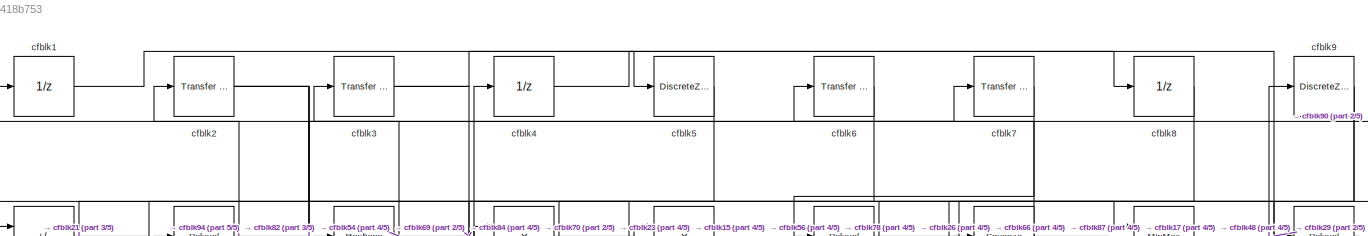
[diagram: root canvas - part 1/5, full width, top band]
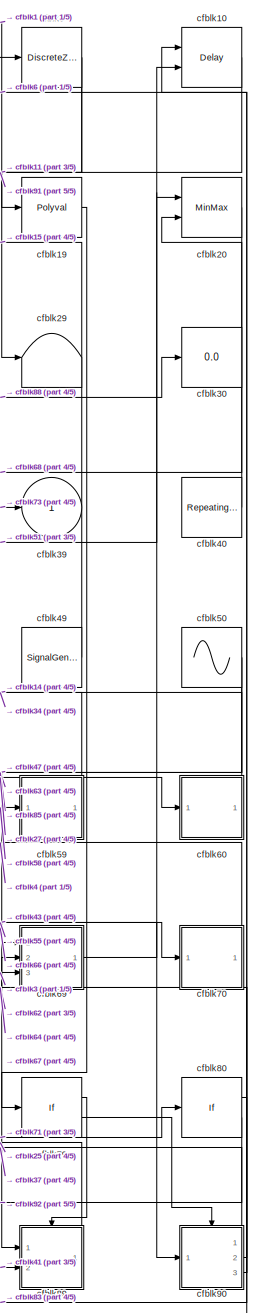
[diagram: root canvas - part 2/5, right side, full height]
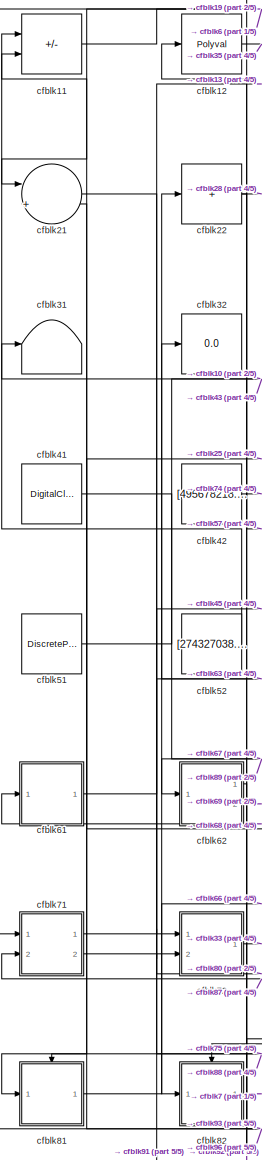
[diagram: root canvas - part 3/5, left side, full height]
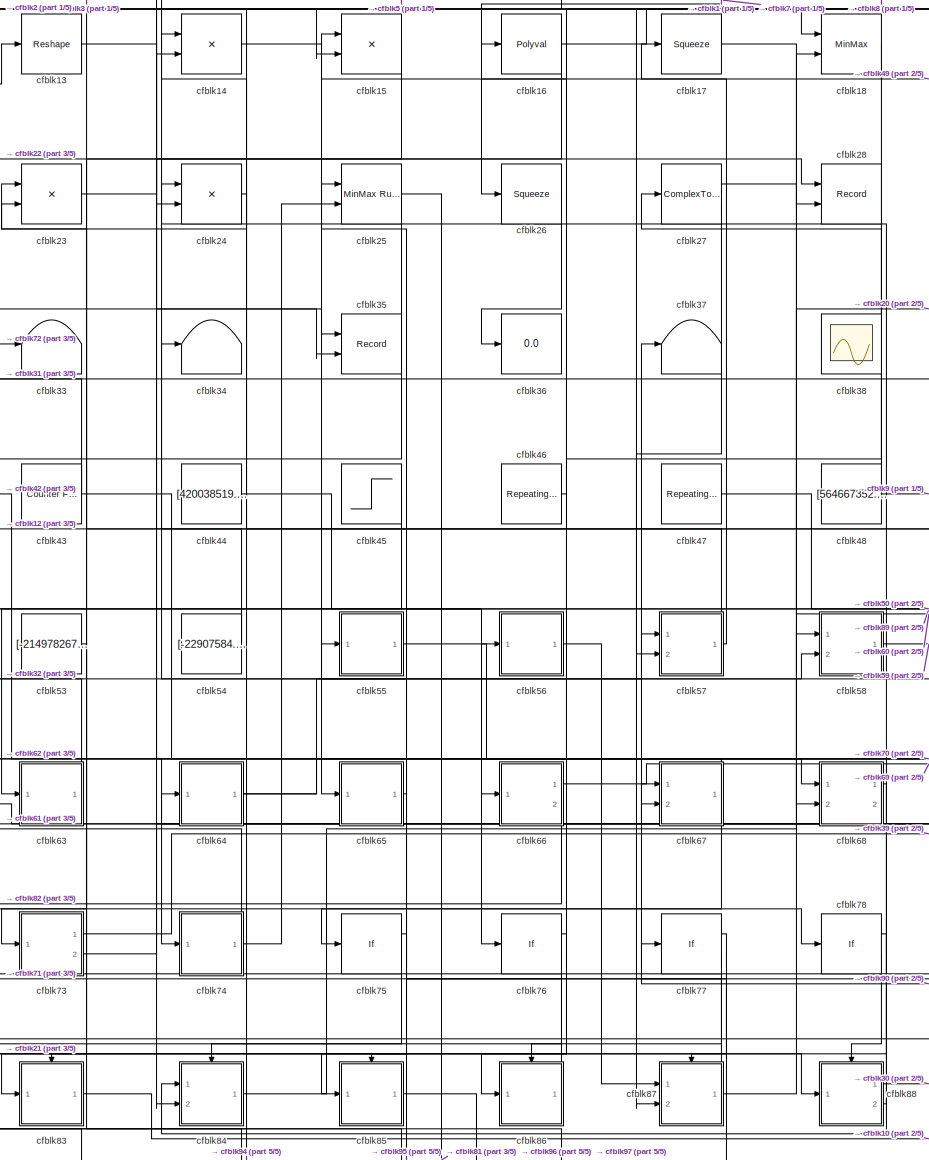
[diagram: root canvas - part 4/5, center side, full height]
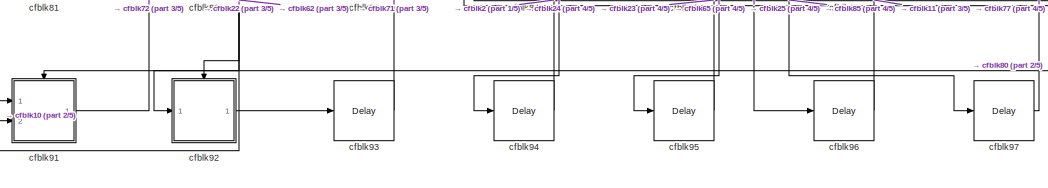
[diagram: root canvas - part 5/5, bottom center region]
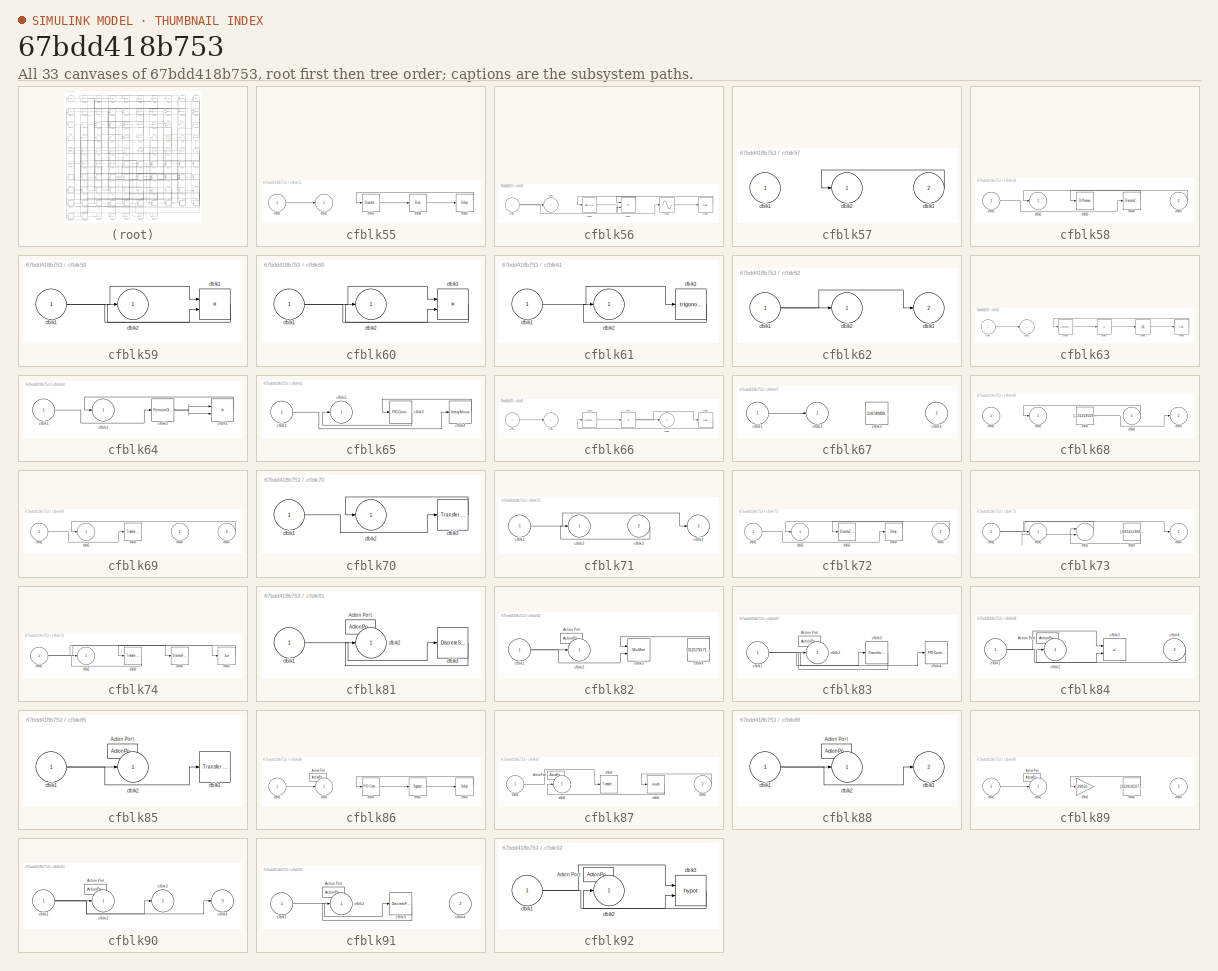
[diagram: thumbnail index - all 33 canvases of the model, root first then tree order]
MODEL slx_67bdd418b753
KIND model
CONFIG AbsTol = auto
CONFIG EnableMultiTasking = off
CONFIG FixedStep = auto
CONFIG MaxStep = auto
CONFIG MinStep = auto
CONFIG RelTol = 1e-3
CONFIG SampleTimeConstraint = Unconstrained
CONFIG SolverName = VariableStepAuto
CONFIG StartTime = 0.0
CONFIG StopTime = 10.0
BLOCK [UnitDelay] cfblk1
  HasFrameUpgradeWarning = on
BLOCK [Delay] cfblk10
  InputPortMap = u0,e6
  Ports = [2, 1]
  SampleTime = 1
  ShowEnablePort = on
BLOCK [Sum] cfblk11
  IconShape = rectangular
  Inputs = -+
  Ports = [2, 1]
BLOCK [Polyval] cfblk12
  Coefs = [ +2.081618890e-019, -1.441693666e-014, +4.719686976e-010, -8.536869453e-006, +1.621573104e-001, -8.087801117e+001 ]
BLOCK [Reshape] cfblk13
  Ports = [1, 1]
BLOCK [Product] cfblk14
  Ports = [2, 1]
BLOCK [Product] cfblk15
  Ports = [2, 1]
BLOCK [Polyval] cfblk16
  Coefs = [ +2.081618890e-019, -1.441693666e-014, +4.719686976e-010, -8.536869453e-006, +1.621573104e-001, -8.087801117e+001 ]
BLOCK [Squeeze] cfblk17
BLOCK [MinMax] cfblk18
  Function = max
  Inputs = 2
  Ports = [2, 1]
BLOCK [Polyval] cfblk19
  Coefs = [ +2.081618890e-019, -1.441693666e-014, +4.719686976e-010, -8.536869453e-006, +1.621573104e-001, -8.087801117e+001 ]
BLOCK [Reference] cfblk2  REF=simulink/Discrete/Transfer Fcn
Real Zero
  Ports = [1, 1]
  SourceBlock = simulink/Discrete/Transfer Fcn\nReal Zero
  SourceProductBaseCode = SL
  SourceType = Transfer Fcn Real Zero
BLOCK [MinMax] cfblk20
  Function = max
  Inputs = 2
  Ports = [2, 1]
BLOCK [Sum] cfblk21
  Inputs = |++
  Ports = [2, 1]
BLOCK [Sum] cfblk22
  IconShape = rectangular
  Inputs = +
  Ports = [1, 1]
BLOCK [Product] cfblk23
  Inputs = **
  Ports = [2, 1]
BLOCK [Product] cfblk24
  Ports = [2, 1]
BLOCK [Reference] cfblk25  REF=simulink/Math
Operations/MinMax
Running
Resettable
  Ports = [2, 1]
  SourceBlock = simulink/Math\nOperations/MinMax\nRunning\nResettable
  SourceProductBaseCode = SL
  SourceType = MinMax Running Resettable
BLOCK [Squeeze] cfblk26
BLOCK [ComplexToMagnitudeAngle] cfblk27
  Ports = [1, 2]
BLOCK [Record] cfblk28
  CompatibilityTag = XY
  FileSettingsInternal = {"entries":[{"content":{"excelSettings":{"content":{},"type":"Streamout.ExcelSettings"}},"type":"Streamout.FileSettingStorage","uuid":"2c212456-ffd4-42f7-90f6-1e0b846be94d"}],"packageUris":["http://schema.mathworks.com/mf0/streamout_blocks/R2020a"],"version":"1.0"}
  Layout = [1 1]
  Ports = [2]
  SignalsInternal = {"entries":[{"content":{"signals":[{"content":{"blockPath":["sampleModel153/cfblk28"],"channel":[],"dimensions":[1],"domain":"sampleModel153/cfblk28","lineColor":"#a2142f","plots":[1],"port":1,"sid":[""],"signalID":5763,"signalName":"cfblk22"},"type":"RecordBlkView.Signal","uuid":"cd0d1053-2d62-45ce-b0cb-306719bd41ca"},{"content":{"blockPath":["sampleModel153/cfblk28"],"channel":[],"dimensions":[1...<+383ch>
  VisualizationBindings = {"xyplotplugin":{"info":[{"series":[{"bindingParametersList":[{"parameter":"X-Axis","signalID":5763,"signalName":"cfblk22"},{"parameter":"Y-Axis","signalID":5767,"signalName":"cfblk17"}],"seriesID":24473}],"subplotID":1}]}}
BLOCK [Terminator] cfblk29
BLOCK [Reference] cfblk3  REF=simulink/Discrete/Transfer Fcn
Real Zero
  Ports = [1, 1]
  SourceBlock = simulink/Discrete/Transfer Fcn\nReal Zero
  SourceProductBaseCode = SL
  SourceType = Transfer Fcn Real Zero
BLOCK [Display] cfblk30
  Decimation = 1
  Ports = [1]
BLOCK [Terminator] cfblk31
BLOCK [Display] cfblk32
  Decimation = 1
  Ports = [1]
BLOCK [Terminator] cfblk33
BLOCK [Terminator] cfblk34
BLOCK [Record] cfblk35
  CompatibilityTag = XY
  FileSettingsInternal = {"entries":[{"content":{"excelSettings":{"content":{},"type":"Streamout.ExcelSettings"}},"type":"Streamout.FileSettingStorage","uuid":"1263f3c2-cf19-49a5-a86e-01916edfd877"}],"packageUris":["http://schema.mathworks.com/mf0/streamout_blocks/R2020a"],"version":"1.0"}
  Layout = [1 1]
  Ports = [2]
  SignalsInternal = {"entries":[{"content":{"signals":[{"content":{"blockPath":["sampleModel153/cfblk35"],"channel":[],"dimensions":[1],"domain":"sampleModel153/cfblk35","lineColor":"#a2142f","plots":[1],"port":1,"sid":[""],"signalID":5771,"signalName":"cfblk13"},"type":"RecordBlkView.Signal","uuid":"12ff4bb5-13ec-4cb2-af01-71f94b166f3a"},{"content":{"blockPath":["sampleModel153/cfblk35"],"channel":[],"dimensions":[1...<+383ch>
  VisualizationBindings = {"xyplotplugin":{"info":[{"series":[{"bindingParametersList":[{"parameter":"X-Axis","signalID":5771,"signalName":"cfblk13"},{"parameter":"Y-Axis","signalID":5775,"signalName":"cfblk12"}],"seriesID":38027}],"subplotID":1}]}}
BLOCK [Display] cfblk36
  Decimation = 1
  Ports = [1]
BLOCK [Terminator] cfblk37
BLOCK [Scope] cfblk38
  Floating = on
  NumInputPorts = 1
  Ports = []
BLOCK [Outport] cfblk39
BLOCK [UnitDelay] cfblk4
  HasFrameUpgradeWarning = on
BLOCK [Reference] cfblk40  REF=simulink/Sources/Repeating
Sequence
  Ports = [0, 1]
  SourceBlock = simulink/Sources/Repeating\nSequence
  SourceProductBaseCode = SL
  SourceType = Repeating table
BLOCK [DigitalClock] cfblk41
BLOCK [Constant] cfblk42
  SampleTime = 1
  Value = [495678218.054794]
BLOCK [Reference] cfblk43  REF=simulink/Sources/Counter
Free-Running
  Ports = [0, 1]
  SourceBlock = simulink/Sources/Counter\nFree-Running
  SourceProductBaseCode = SL
  SourceType = Counter Free-Running
BLOCK [Constant] cfblk44
  SampleTime = 1
  Value = [420038519.673306]
BLOCK [Step] cfblk45
  After = [-884570738.037617]
  Before = [549406599.137464]
  SampleTime = 0
  Time = [9.000000]
BLOCK [Reference] cfblk46  REF=simulink/Sources/Repeating
Sequence
  Ports = [0, 1]
  SourceBlock = simulink/Sources/Repeating\nSequence
  SourceProductBaseCode = SL
  SourceType = Repeating table
BLOCK [Reference] cfblk47  REF=simulink/Sources/Repeating
Sequence
  Ports = [0, 1]
  SourceBlock = simulink/Sources/Repeating\nSequence
  SourceProductBaseCode = SL
  SourceType = Repeating table
BLOCK [Constant] cfblk48
  SampleTime = 1
  Value = [564667352.227001]
BLOCK [SignalGenerator] cfblk49
  Amplitude = [-35189070.277397]
  Ports = [0, 1]
  WaveForm = square
BLOCK [DiscreteZeroPole] cfblk5
  Gain = 1
  Poles = [0 0.5]
BLOCK [Sin] cfblk50
  Amplitude = [679153258.026251]
  Bias = [71946484.496305]
  Ports = [0, 1]
  SampleTime = 0
BLOCK [DiscretePulseGenerator] cfblk51
  Amplitude = [-905572706.861220]
  Period = [25399311.499519]
  PhaseDelay = [2.000000]
  Ports = [0, 1]
  PulseType = Time based
  PulseWidth = 5
BLOCK [Constant] cfblk52
  SampleTime = 1
  Value = [274327038.621577]
BLOCK [Constant] cfblk53
  SampleTime = 1
  Value = [-214978267.878094]
BLOCK [Constant] cfblk54
  SampleTime = 1
  Value = [-22907584.015559]
BLOCK [SubSystem] cfblk55
  Ports = [1, 1]
  RequestExecContextInheritance = off
BLOCK [Inport] cfblk55/cfblk1
BLOCK [Outport] cfblk55/cfblk2
BLOCK [DiscreteIntegrator] cfblk55/cfblk3
  ICPrevOutput = DiscIntNeverNeededParam
  ICPrevScaledInput = DiscIntNeverNeededParam
  InitialConditionSetting = Auto
  Ports = [1, 1]
BLOCK [Bias] cfblk55/cfblk4
  Bias = [940752023.609601]
  SaturateOnIntegerOverflow = off
BLOCK [Delay] cfblk55/cfblk5
  InputPortMap = u0
  Ports = [1, 1]
  SampleTime = 1
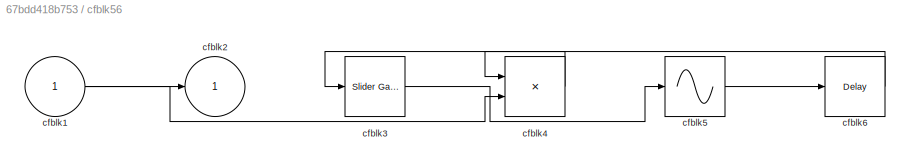
BLOCK [SubSystem] cfblk56
  Ports = [1, 1]
  RequestExecContextInheritance = off
BLOCK [Inport] cfblk56/cfblk1
BLOCK [Outport] cfblk56/cfblk2
BLOCK [Reference] cfblk56/cfblk3  REF=simulink/Math
Operations/Slider
Gain
  Ports = [1, 1]
  SourceBlock = simulink/Math\nOperations/Slider\nGain
  SourceProductBaseCode = SL
  SourceType = Slider Gain
BLOCK [Product] cfblk56/cfblk4
  Inputs = **
  Ports = [2, 1]
BLOCK [Sin] cfblk56/cfblk5
  Ports = [1, 1]
  SampleTime = 0
  TimeSource = Use external signal
BLOCK [Delay] cfblk56/cfblk6
  InputPortMap = u0
  Ports = [1, 1]
  SampleTime = 1
BLOCK [SubSystem] cfblk57
  Ports = [2, 1]
  RequestExecContextInheritance = off
BLOCK [Inport] cfblk57/cfblk1
BLOCK [Outport] cfblk57/cfblk2
BLOCK [Inport] cfblk57/cfblk3
  Port = 2
BLOCK [SubSystem] cfblk58
  Ports = [2, 1]
  RequestExecContextInheritance = off
BLOCK [Inport] cfblk58/cfblk1
BLOCK [Outport] cfblk58/cfblk2
BLOCK [Reference] cfblk58/cfblk3  REF=simulink/Discrete/Difference
  Ports = [1, 1]
  SourceBlock = simulink/Discrete/Difference
  SourceProductBaseCode = SL
  SourceType = Difference
BLOCK [DiscreteZeroPole] cfblk58/cfblk4
  Gain = 1
  Poles = [0 0.5]
BLOCK [Inport] cfblk58/cfblk5
  Port = 2
BLOCK [SubSystem] cfblk59
  Ports = [1, 1]
  RequestExecContextInheritance = off
BLOCK [Inport] cfblk59/cfblk1
BLOCK [Outport] cfblk59/cfblk2
BLOCK [Product] cfblk59/cfblk3
  Inputs = **
  Ports = [2, 1]
BLOCK [Reference] cfblk6  REF=simulink/Discrete/Transfer Fcn
Real Zero
  Ports = [1, 1]
  SourceBlock = simulink/Discrete/Transfer Fcn\nReal Zero
  SourceProductBaseCode = SL
  SourceType = Transfer Fcn Real Zero
BLOCK [SubSystem] cfblk60
  Ports = [1, 1]
  RequestExecContextInheritance = off
BLOCK [Inport] cfblk60/cfblk1
BLOCK [Outport] cfblk60/cfblk2
BLOCK [Product] cfblk60/cfblk3
  Ports = [2, 1]
BLOCK [SubSystem] cfblk61
  Ports = [1, 1]
  RequestExecContextInheritance = off
BLOCK [Inport] cfblk61/cfblk1
BLOCK [Outport] cfblk61/cfblk2
BLOCK [Trigonometry] cfblk61/cfblk3
  Ports = [1, 1]
BLOCK [SubSystem] cfblk62
  Ports = [1, 2]
  RequestExecContextInheritance = off
BLOCK [Inport] cfblk62/cfblk1
BLOCK [Outport] cfblk62/cfblk2
BLOCK [Outport] cfblk62/cfblk3
  Port = 2
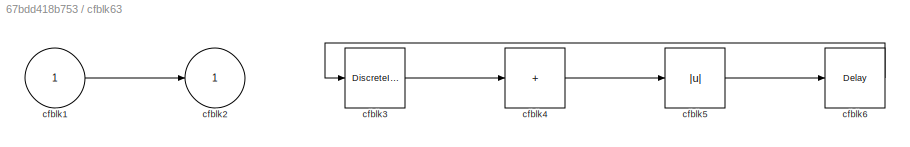
BLOCK [SubSystem] cfblk63
  Ports = [1, 1]
  RequestExecContextInheritance = off
BLOCK [Inport] cfblk63/cfblk1
BLOCK [Outport] cfblk63/cfblk2
BLOCK [DiscreteIntegrator] cfblk63/cfblk3
  ICPrevOutput = DiscIntNeverNeededParam
  ICPrevScaledInput = DiscIntNeverNeededParam
  InitialConditionSetting = Auto
  Ports = [1, 1]
BLOCK [Sum] cfblk63/cfblk4
  IconShape = rectangular
  Inputs = +
  Ports = [1, 1]
BLOCK [Abs] cfblk63/cfblk5
  SaturateOnIntegerOverflow = off
BLOCK [Delay] cfblk63/cfblk6
  InputPortMap = u0
  Ports = [1, 1]
  SampleTime = 1
BLOCK [SubSystem] cfblk64
  Ports = [1, 1]
  RequestExecContextInheritance = off
BLOCK [Inport] cfblk64/cfblk1
BLOCK [Outport] cfblk64/cfblk2
BLOCK [PermuteDimensions] cfblk64/cfblk3
BLOCK [Product] cfblk64/cfblk4
  Ports = [2, 1]
BLOCK [SubSystem] cfblk65
  Ports = [1, 1]
  RequestExecContextInheritance = off
BLOCK [Inport] cfblk65/cfblk1
BLOCK [Outport] cfblk65/cfblk2
BLOCK [Reference] cfblk65/cfblk3  REF=slpidlib/PID Controller
  Ports = [1, 1]
  SourceBlock = slpidlib/PID Controller
  SourceProductBaseCode = SL
  SourceType = PID 1dof
BLOCK [UnaryMinus] cfblk65/cfblk4
BLOCK [SubSystem] cfblk66
  Ports = [1, 2]
  RequestExecContextInheritance = off
BLOCK [Inport] cfblk66/cfblk1
BLOCK [Outport] cfblk66/cfblk2
BLOCK [Reference] cfblk66/cfblk3  REF=simulink/Discrete/Transfer Fcn
Real Zero
  Ports = [1, 1]
  SourceBlock = simulink/Discrete/Transfer Fcn\nReal Zero
  SourceProductBaseCode = SL
  SourceType = Transfer Fcn Real Zero
BLOCK [Product] cfblk66/cfblk4
  Inputs = *
  Ports = [1, 1]
BLOCK [Outport] cfblk66/cfblk5
  Port = 2
BLOCK [Delay] cfblk66/cfblk6
  InputPortMap = u0
  Ports = [1, 1]
  SampleTime = 1
BLOCK [SubSystem] cfblk67
  Ports = [2, 1]
  RequestExecContextInheritance = off
BLOCK [Inport] cfblk67/cfblk1
BLOCK [Outport] cfblk67/cfblk2
BLOCK [Constant] cfblk67/cfblk3
  SampleTime = 1
  Value = [-518749499.142794]
BLOCK [Inport] cfblk67/cfblk4
  Port = 2
BLOCK [SubSystem] cfblk68
  Ports = [2, 2]
  RequestExecContextInheritance = off
BLOCK [Inport] cfblk68/cfblk1
BLOCK [Outport] cfblk68/cfblk2
BLOCK [Constant] cfblk68/cfblk3
  SampleTime = 1
  Value = [-131418509.216649]
BLOCK [Inport] cfblk68/cfblk4
  Port = 2
BLOCK [Outport] cfblk68/cfblk5
  Port = 2
BLOCK [SubSystem] cfblk69
  Ports = [3, 1]
  RequestExecContextInheritance = off
BLOCK [Inport] cfblk69/cfblk1
BLOCK [Outport] cfblk69/cfblk2
BLOCK [Reference] cfblk69/cfblk3  REF=simulink/Discrete/Transfer Fcn
First Order
  Ports = [1, 1]
  SourceBlock = simulink/Discrete/Transfer Fcn\nFirst Order
  SourceProductBaseCode = SL
  SourceType = First Order Transfer Fcn
BLOCK [Inport] cfblk69/cfblk4
  Port = 2
BLOCK [Inport] cfblk69/cfblk5
  Port = 3
BLOCK [Reference] cfblk7  REF=simulink/Discrete/Transfer Fcn
Lead or Lag
  Ports = [1, 1]
  SourceBlock = simulink/Discrete/Transfer Fcn\nLead or Lag
  SourceProductBaseCode = SL
  SourceType = Lead or Lag Compensator
BLOCK [SubSystem] cfblk70
  Ports = [1, 1]
  RequestExecContextInheritance = off
BLOCK [Inport] cfblk70/cfblk1
BLOCK [Outport] cfblk70/cfblk2
BLOCK [Reference] cfblk70/cfblk3  REF=simulink/Discrete/Transfer Fcn
First Order
  Ports = [1, 1]
  SourceBlock = simulink/Discrete/Transfer Fcn\nFirst Order
  SourceProductBaseCode = SL
  SourceType = First Order Transfer Fcn
BLOCK [SubSystem] cfblk71
  Ports = [2, 2]
  RequestExecContextInheritance = off
BLOCK [Inport] cfblk71/cfblk1
BLOCK [Outport] cfblk71/cfblk2
BLOCK [Inport] cfblk71/cfblk3
  Port = 2
BLOCK [Outport] cfblk71/cfblk4
  Port = 2
BLOCK [SubSystem] cfblk72
  Ports = [2, 1]
  RequestExecContextInheritance = off
BLOCK [Inport] cfblk72/cfblk1
BLOCK [Outport] cfblk72/cfblk2
BLOCK [DiscreteZeroPole] cfblk72/cfblk3
  Gain = 1
  Poles = [0 0.5]
BLOCK [Delay] cfblk72/cfblk4
  InputPortMap = u0
  Ports = [1, 1]
  SampleTime = 1
BLOCK [Inport] cfblk72/cfblk5
  Port = 2
BLOCK [SubSystem] cfblk73
  Ports = [1, 2]
  RequestExecContextInheritance = off
BLOCK [Inport] cfblk73/cfblk1
BLOCK [Outport] cfblk73/cfblk2
BLOCK [Sum] cfblk73/cfblk3
  Inputs = |++
  Ports = [2, 1]
BLOCK [Constant] cfblk73/cfblk4
  SampleTime = 1
  Value = [-692411394.663494]
BLOCK [Outport] cfblk73/cfblk5
  Port = 2
BLOCK [SubSystem] cfblk74
  Ports = [1, 1]
  RequestExecContextInheritance = off
BLOCK [Inport] cfblk74/cfblk1
BLOCK [Outport] cfblk74/cfblk2
BLOCK [Reference] cfblk74/cfblk3  REF=simulink/Discrete/Transfer Fcn
Real Zero
  Ports = [1, 1]
  SourceBlock = simulink/Discrete/Transfer Fcn\nReal Zero
  SourceProductBaseCode = SL
  SourceType = Transfer Fcn Real Zero
BLOCK [DiscreteFilter] cfblk74/cfblk4
  InputPortMap = u0
  Ports = [1, 1]
  SampleTime = 1
BLOCK [UnitDelay] cfblk74/cfblk5
  HasFrameUpgradeWarning = on
BLOCK [If] cfblk75
  IfExpression = u1 >= 0
  Ports = [1, 2]
  SampleTime = 1
BLOCK [If] cfblk76
  IfExpression = u1 >= 0
  Ports = [1, 2]
  SampleTime = 1
BLOCK [If] cfblk77
  IfExpression = u1 >= 0
  Ports = [1, 2]
  SampleTime = 1
BLOCK [If] cfblk78
  IfExpression = u1 >= 0
  Ports = [1, 2]
  SampleTime = 1
BLOCK [If] cfblk79
  IfExpression = u1 >= 0
  Ports = [1, 2]
  SampleTime = 1
BLOCK [UnitDelay] cfblk8
  HasFrameUpgradeWarning = on
BLOCK [If] cfblk80
  IfExpression = u1 >= 0
  Ports = [1, 2]
  SampleTime = 1
BLOCK [SubSystem] cfblk81
  Ports = [1, 1, 0, 0, 0, 0, 0, 1]
  RequestExecContextInheritance = off
  TreatAsAtomicUnit = on
BLOCK [ActionPort] cfblk81/Action Port
  ActionPortLabel = if(u1 >= 0)
BLOCK [Inport] cfblk81/cfblk1
BLOCK [Outport] cfblk81/cfblk2
BLOCK [DiscreteStateSpace] cfblk81/cfblk3
  SampleTime = -1
BLOCK [SubSystem] cfblk82
  Ports = [1, 1, 0, 0, 0, 0, 0, 1]
  RequestExecContextInheritance = off
  TreatAsAtomicUnit = on
BLOCK [ActionPort] cfblk82/Action Port
  ActionPortLabel = else
BLOCK [Inport] cfblk82/cfblk1
BLOCK [Outport] cfblk82/cfblk2
BLOCK [MinMax] cfblk82/cfblk3
  Inputs = 2
  Ports = [2, 1]
BLOCK [Constant] cfblk82/cfblk4
  SampleTime = 1
  Value = [3125733.718125]
BLOCK [SubSystem] cfblk83
  Ports = [1, 1, 0, 0, 0, 0, 0, 1]
  RequestExecContextInheritance = off
  TreatAsAtomicUnit = on
BLOCK [ActionPort] cfblk83/Action Port
  ActionPortLabel = if(u1 >= 0)
BLOCK [Inport] cfblk83/cfblk1
BLOCK [Outport] cfblk83/cfblk2
BLOCK [Reference] cfblk83/cfblk3  REF=simulink/Discrete/Transfer Fcn
First Order
  Ports = [1, 1]
  SourceBlock = simulink/Discrete/Transfer Fcn\nFirst Order
  SourceProductBaseCode = SL
  SourceType = First Order Transfer Fcn
BLOCK [Reference] cfblk83/cfblk4  REF=slpidlib/PID Controller
  Ports = [1, 1]
  SourceBlock = slpidlib/PID Controller
  SourceProductBaseCode = SL
  SourceType = PID 1dof
BLOCK [SubSystem] cfblk84
  Ports = [2, 1, 0, 0, 0, 0, 0, 1]
  RequestExecContextInheritance = off
  TreatAsAtomicUnit = on
BLOCK [ActionPort] cfblk84/Action Port
  ActionPortLabel = else
BLOCK [Inport] cfblk84/cfblk1
BLOCK [Outport] cfblk84/cfblk2
BLOCK [Sum] cfblk84/cfblk3
  IconShape = rectangular
  Inputs = +-
  Ports = [2, 1]
BLOCK [Inport] cfblk84/cfblk4
  Port = 2
BLOCK [SubSystem] cfblk85
  Ports = [1, 1, 0, 0, 0, 0, 0, 1]
  RequestExecContextInheritance = off
  TreatAsAtomicUnit = on
BLOCK [ActionPort] cfblk85/Action Port
  ActionPortLabel = if(u1 >= 0)
BLOCK [Inport] cfblk85/cfblk1
BLOCK [Outport] cfblk85/cfblk2
BLOCK [Reference] cfblk85/cfblk3  REF=simulink/Discrete/Transfer Fcn
Lead or Lag
  Ports = [1, 1]
  SourceBlock = simulink/Discrete/Transfer Fcn\nLead or Lag
  SourceProductBaseCode = SL
  SourceType = Lead or Lag Compensator
BLOCK [SubSystem] cfblk86
  Ports = [1, 1, 0, 0, 0, 0, 0, 1]
  RequestExecContextInheritance = off
  TreatAsAtomicUnit = on
BLOCK [ActionPort] cfblk86/Action Port
  ActionPortLabel = else
BLOCK [Inport] cfblk86/cfblk1
BLOCK [Outport] cfblk86/cfblk2
BLOCK [Reference] cfblk86/cfblk3  REF=slpidlib/PID Controller
  Ports = [1, 1]
  SourceBlock = slpidlib/PID Controller
  SourceProductBaseCode = SL
  SourceType = PID 1dof
BLOCK [Squeeze] cfblk86/cfblk4
BLOCK [Delay] cfblk86/cfblk5
  InputPortMap = u0
  Ports = [1, 1]
BLOCK [SubSystem] cfblk87
  Ports = [2, 1, 0, 0, 0, 0, 0, 1]
  RequestExecContextInheritance = off
  TreatAsAtomicUnit = on
BLOCK [ActionPort] cfblk87/Action Port
  ActionPortLabel = if(u1 >= 0)
BLOCK [Inport] cfblk87/cfblk1
BLOCK [Outport] cfblk87/cfblk2
BLOCK [Reference] cfblk87/cfblk3  REF=simulink/Discrete/Transfer Fcn
First Order
  Ports = [1, 1]
  SourceBlock = simulink/Discrete/Transfer Fcn\nFirst Order
  SourceProductBaseCode = SL
  SourceType = First Order Transfer Fcn
BLOCK [Math] cfblk87/cfblk4
  Ports = [1, 1]
BLOCK [Inport] cfblk87/cfblk5
  Port = 2
BLOCK [SubSystem] cfblk88
  Ports = [1, 2, 0, 0, 0, 0, 0, 1]
  RequestExecContextInheritance = off
  TreatAsAtomicUnit = on
BLOCK [ActionPort] cfblk88/Action Port
  ActionPortLabel = else
BLOCK [Inport] cfblk88/cfblk1
BLOCK [Outport] cfblk88/cfblk2
BLOCK [Outport] cfblk88/cfblk3
  Port = 2
BLOCK [SubSystem] cfblk89
  Ports = [2, 1, 0, 0, 0, 0, 0, 1]
  RequestExecContextInheritance = off
  TreatAsAtomicUnit = on
BLOCK [ActionPort] cfblk89/Action Port
  ActionPortLabel = if(u1 >= 0)
BLOCK [Inport] cfblk89/cfblk1
BLOCK [Outport] cfblk89/cfblk2
BLOCK [Gain] cfblk89/cfblk3
  Gain = [-386503617.861001]
BLOCK [Constant] cfblk89/cfblk4
  SampleTime = 1
  Value = [162810507.357299]
BLOCK [Inport] cfblk89/cfblk5
  Port = 2
BLOCK [DiscreteZeroPole] cfblk9
  Gain = 1
  Poles = [0 0.5]
BLOCK [SubSystem] cfblk90
  Ports = [1, 3, 0, 0, 0, 0, 0, 1]
  RequestExecContextInheritance = off
  TreatAsAtomicUnit = on
BLOCK [ActionPort] cfblk90/Action Port
  ActionPortLabel = else
BLOCK [Inport] cfblk90/cfblk1
BLOCK [Outport] cfblk90/cfblk2
BLOCK [Outport] cfblk90/cfblk3
  Port = 2
BLOCK [Outport] cfblk90/cfblk4
  Port = 3
BLOCK [SubSystem] cfblk91
  Ports = [2, 1, 0, 0, 0, 0, 0, 1]
  RequestExecContextInheritance = off
  TreatAsAtomicUnit = on
BLOCK [ActionPort] cfblk91/Action Port
  ActionPortLabel = if(u1 >= 0)
BLOCK [Inport] cfblk91/cfblk1
BLOCK [Outport] cfblk91/cfblk2
BLOCK [DiscreteFir] cfblk91/cfblk3
  InputPortMap = u0
  OutputPortMap = o0
  Ports = [1, 1]
BLOCK [Inport] cfblk91/cfblk4
  Port = 2
BLOCK [SubSystem] cfblk92
  Ports = [1, 1, 0, 0, 0, 0, 0, 1]
  RequestExecContextInheritance = off
  TreatAsAtomicUnit = on
BLOCK [ActionPort] cfblk92/Action Port
  ActionPortLabel = else
BLOCK [Inport] cfblk92/cfblk1
BLOCK [Outport] cfblk92/cfblk2
BLOCK [Math] cfblk92/cfblk3
  Operator = hypot
  Ports = [2, 1]
BLOCK [Delay] cfblk93
  InputPortMap = u0
  Ports = [1, 1]
  SampleTime = 1
BLOCK [Delay] cfblk94
  InputPortMap = u0
  Ports = [1, 1]
  SampleTime = 1
BLOCK [Delay] cfblk95
  InputPortMap = u0
  Ports = [1, 1]
  SampleTime = 1
BLOCK [Delay] cfblk96
  InputPortMap = u0
  Ports = [1, 1]
  SampleTime = 1
BLOCK [Delay] cfblk97
  InputPortMap = u0
  Ports = [1, 1]
  SampleTime = 1
LINE cfblk10:1 -> cfblk91:2
LINE cfblk11:1 -> cfblk19:1
LINE cfblk12:1 -> cfblk35:2
LINE cfblk13:1 -> cfblk35:1
LINE cfblk14:1 -> cfblk65:1
LINE cfblk15:1 -> cfblk83:1
NET cfblk16:1 -> cfblk18:1, cfblk24:2
NET cfblk17:1 -> cfblk1:1, cfblk28:2
LINE cfblk18:1 -> cfblk86:1
LINE cfblk19:1 -> cfblk79:1
LINE cfblk1:1 -> cfblk29:1
LINE cfblk20:1 -> cfblk68:2
LINE cfblk21:1 -> cfblk88:1
NET cfblk22:1 -> cfblk28:1, cfblk92:1
LINE cfblk23:1 -> cfblk14:2
LINE cfblk24:1 -> cfblk94:1
NET cfblk25:1 -> cfblk81:1, cfblk96:1
LINE cfblk26:1 -> cfblk36:1
LINE cfblk27:1 -> cfblk60:1
LINE cfblk27:2 -> cfblk57:2
NET cfblk2:1 -> cfblk15:2, cfblk56:1, cfblk78:1
NET cfblk3:1 -> cfblk5:1, cfblk69:3
LINE cfblk40:1 -> cfblk20:2
LINE cfblk41:1 -> cfblk89:2
LINE cfblk42:1 -> cfblk74:1
NET cfblk43:1 -> cfblk31:1, cfblk90:1
LINE cfblk44:1 -> cfblk76:1
LINE cfblk45:1 -> cfblk72:2
LINE cfblk46:1 -> cfblk16:1
LINE cfblk47:1 -> cfblk89:1
NET cfblk48:1 -> cfblk27:1, cfblk9:1
LINE cfblk49:1 -> cfblk15:1
LINE cfblk4:1 -> cfblk8:1
NET cfblk50:1 -> cfblk63:1, cfblk85:1
LINE cfblk51:1 -> cfblk10:2
LINE cfblk52:1 -> cfblk11:1
LINE cfblk53:1 -> cfblk73:1
LINE cfblk54:1 -> cfblk3:1
LINE cfblk55/cfblk1:1 -> cfblk55/cfblk2:1
LINE cfblk55/cfblk3:1 -> cfblk55/cfblk4:1
LINE cfblk55/cfblk4:1 -> cfblk55/cfblk5:1
LINE cfblk55/cfblk5:1 -> cfblk55/cfblk3:1
LINE cfblk55:1 -> cfblk70:1
NET cfblk56/cfblk1:1 -> cfblk56/cfblk2:1, cfblk56/cfblk4:2
LINE cfblk56/cfblk3:1 -> cfblk56/cfblk5:1
LINE cfblk56/cfblk4:1 -> cfblk56/cfblk3:1
LINE cfblk56/cfblk5:1 -> cfblk56/cfblk6:1
LINE cfblk56/cfblk6:1 -> cfblk56/cfblk4:1
LINE cfblk56:1 -> cfblk87:1
LINE cfblk57/cfblk3:1 -> cfblk57/cfblk2:1
NET cfblk57:1 -> cfblk12:1, cfblk17:1
LINE cfblk58/cfblk1:1 -> cfblk58/cfblk4:1
LINE cfblk58/cfblk4:1 -> cfblk58/cfblk3:1
LINE cfblk58/cfblk5:1 -> cfblk58/cfblk2:1
LINE cfblk58:1 -> cfblk59:1
NET cfblk59/cfblk1:1 -> cfblk59/cfblk3:1, cfblk59/cfblk3:2
LINE cfblk59/cfblk3:1 -> cfblk59/cfblk2:1
LINE cfblk59:1 -> cfblk34:1
LINE cfblk5:1 -> cfblk23:1
NET cfblk60/cfblk1:1 -> cfblk60/cfblk3:1, cfblk60/cfblk3:2
LINE cfblk60/cfblk3:1 -> cfblk60/cfblk2:1
LINE cfblk60:1 -> cfblk14:1
LINE cfblk61/cfblk1:1 -> cfblk61/cfblk3:1
LINE cfblk61/cfblk3:1 -> cfblk61/cfblk2:1
LINE cfblk61:1 -> cfblk57:1
NET cfblk62/cfblk1:1 -> cfblk62/cfblk2:1, cfblk62/cfblk3:1
LINE cfblk62:1 -> cfblk91:1
LINE cfblk62:2 -> cfblk69:2
LINE cfblk63/cfblk1:1 -> cfblk63/cfblk2:1
LINE cfblk63/cfblk3:1 -> cfblk63/cfblk4:1
LINE cfblk63/cfblk4:1 -> cfblk63/cfblk5:1
LINE cfblk63/cfblk5:1 -> cfblk63/cfblk6:1
LINE cfblk63/cfblk6:1 -> cfblk63/cfblk3:1
LINE cfblk63:1 -> cfblk32:1
LINE cfblk64/cfblk1:1 -> cfblk64/cfblk3:1
NET cfblk64/cfblk3:1 -> cfblk64/cfblk4:1, cfblk64/cfblk4:2
LINE cfblk64/cfblk4:1 -> cfblk64/cfblk2:1
NET cfblk64:1 -> cfblk58:2, cfblk68:1
LINE cfblk65/cfblk1:1 -> cfblk65/cfblk4:1
LINE cfblk65/cfblk3:1 -> cfblk65/cfblk2:1
LINE cfblk65/cfblk4:1 -> cfblk65/cfblk3:1
LINE cfblk65:1 -> cfblk95:1
LINE cfblk66/cfblk1:1 -> cfblk66/cfblk2:1
LINE cfblk66/cfblk3:1 -> cfblk66/cfblk4:1
NET cfblk66/cfblk4:1 -> cfblk66/cfblk5:1, cfblk66/cfblk6:1
LINE cfblk66/cfblk6:1 -> cfblk66/cfblk3:1
LINE cfblk66:1 -> cfblk69:1
LINE cfblk66:2 -> cfblk82:1
LINE cfblk67/cfblk1:1 -> cfblk67/cfblk2:1
NET cfblk67:1 -> cfblk62:1, cfblk75:1
LINE cfblk68/cfblk3:1 -> cfblk68/cfblk5:1
LINE cfblk68/cfblk4:1 -> cfblk68/cfblk2:1
LINE cfblk68:1 -> cfblk84:1
LINE cfblk68:2 -> cfblk61:1
LINE cfblk69/cfblk1:1 -> cfblk69/cfblk3:1
LINE cfblk69/cfblk5:1 -> cfblk69/cfblk2:1
LINE cfblk69:1 -> cfblk20:1
LINE cfblk6:1 -> cfblk21:1
LINE cfblk70/cfblk1:1 -> cfblk70/cfblk3:1
LINE cfblk70/cfblk3:1 -> cfblk70/cfblk2:1
LINE cfblk70:1 -> cfblk4:1
LINE cfblk71/cfblk1:1 -> cfblk71/cfblk4:1
LINE cfblk71/cfblk3:1 -> cfblk71/cfblk2:1
LINE cfblk71:1 -> cfblk13:1
LINE cfblk71:2 -> cfblk80:1
LINE cfblk72/cfblk1:1 -> cfblk72/cfblk4:1
LINE cfblk72/cfblk4:1 -> cfblk72/cfblk3:1
LINE cfblk72/cfblk5:1 -> cfblk72/cfblk2:1
LINE cfblk72:1 -> cfblk33:1
NET cfblk73/cfblk1:1 -> cfblk73/cfblk3:2, cfblk73/cfblk5:1
LINE cfblk73/cfblk3:1 -> cfblk73/cfblk2:1
LINE cfblk73/cfblk4:1 -> cfblk73/cfblk3:1
LINE cfblk73:1 -> cfblk39:1
LINE cfblk73:2 -> cfblk67:1
NET cfblk74/cfblk1:1 -> cfblk74/cfblk4:1, cfblk74/cfblk5:1
LINE cfblk74/cfblk3:1 -> cfblk74/cfblk2:1
LINE cfblk74/cfblk5:1 -> cfblk74/cfblk3:1
NET cfblk74:1 -> cfblk21:2, cfblk25:2
LINE cfblk75:1 -> cfblk81:ifaction
LINE cfblk75:2 -> cfblk82:ifaction
LINE cfblk76:1 -> cfblk83:ifaction
LINE cfblk76:2 -> cfblk84:ifaction
LINE cfblk77:1 -> cfblk85:ifaction
LINE cfblk77:2 -> cfblk86:ifaction
LINE cfblk78:1 -> cfblk87:ifaction
LINE cfblk78:2 -> cfblk88:ifaction
LINE cfblk79:1 -> cfblk89:ifaction
LINE cfblk79:2 -> cfblk90:ifaction
LINE cfblk7:1 -> cfblk26:1
LINE cfblk80:1 -> cfblk91:ifaction
LINE cfblk80:2 -> cfblk92:ifaction
LINE cfblk81/cfblk1:1 -> cfblk81/cfblk3:1
LINE cfblk81/cfblk3:1 -> cfblk81/cfblk2:1
LINE cfblk81:1 -> cfblk22:1
NET cfblk82/cfblk1:1 -> cfblk82/cfblk2:1, cfblk82/cfblk3:2
LINE cfblk82/cfblk4:1 -> cfblk82/cfblk3:1
LINE cfblk82:1 -> cfblk7:1
NET cfblk83/cfblk1:1 -> cfblk83/cfblk3:1, cfblk83/cfblk4:1
LINE cfblk83/cfblk3:1 -> cfblk83/cfblk2:1
LINE cfblk83:1 -> cfblk10:1
NET cfblk84/cfblk1:1 -> cfblk84/cfblk3:1, cfblk84/cfblk3:2
LINE cfblk84/cfblk4:1 -> cfblk84/cfblk2:1
LINE cfblk84:1 -> cfblk58:1
NET cfblk85/cfblk1:1 -> cfblk85/cfblk2:1, cfblk85/cfblk3:1
LINE cfblk85:1 -> cfblk97:1
LINE cfblk86/cfblk1:1 -> cfblk86/cfblk2:1
LINE cfblk86/cfblk3:1 -> cfblk86/cfblk4:1
LINE cfblk86/cfblk4:1 -> cfblk86/cfblk5:1
LINE cfblk86/cfblk5:1 -> cfblk86/cfblk3:1
LINE cfblk86:1 -> cfblk55:1
LINE cfblk87/cfblk1:1 -> cfblk87/cfblk3:1
LINE cfblk87/cfblk4:1 -> cfblk87/cfblk2:1
LINE cfblk87/cfblk5:1 -> cfblk87/cfblk4:1
NET cfblk87:1 -> cfblk18:2, cfblk71:2
NET cfblk88/cfblk1:1 -> cfblk88/cfblk2:1, cfblk88/cfblk3:1
LINE cfblk88:1 -> cfblk30:1
LINE cfblk88:2 -> cfblk24:1
LINE cfblk89/cfblk1:1 -> cfblk89/cfblk2:1
LINE cfblk89/cfblk4:1 -> cfblk89/cfblk3:1
LINE cfblk89:1 -> cfblk25:1
LINE cfblk8:1 -> cfblk66:1
NET cfblk90/cfblk1:1 -> cfblk90/cfblk2:1, cfblk90/cfblk3:1, cfblk90/cfblk4:1
LINE cfblk90:1 -> cfblk37:1
LINE cfblk90:2 -> cfblk6:1
NET cfblk90:3 -> cfblk64:1, cfblk67:2
LINE cfblk91/cfblk1:1 -> cfblk91/cfblk3:1
LINE cfblk91/cfblk3:1 -> cfblk91/cfblk2:1
LINE cfblk91:1 -> cfblk72:1
NET cfblk92/cfblk1:1 -> cfblk92/cfblk3:1, cfblk92/cfblk3:2
LINE cfblk92/cfblk3:1 -> cfblk92/cfblk2:1
LINE cfblk92:1 -> cfblk93:1
LINE cfblk93:1 -> cfblk71:1
LINE cfblk94:1 -> cfblk2:1
LINE cfblk95:1 -> cfblk23:2
LINE cfblk96:1 -> cfblk11:2
LINE cfblk97:1 -> cfblk77:1
NET cfblk9:1 -> cfblk84:2, cfblk87:2
note: NET lines group one-source signal fan-out (src -> all destinations, sorted); 1:1 wires keep LINE
